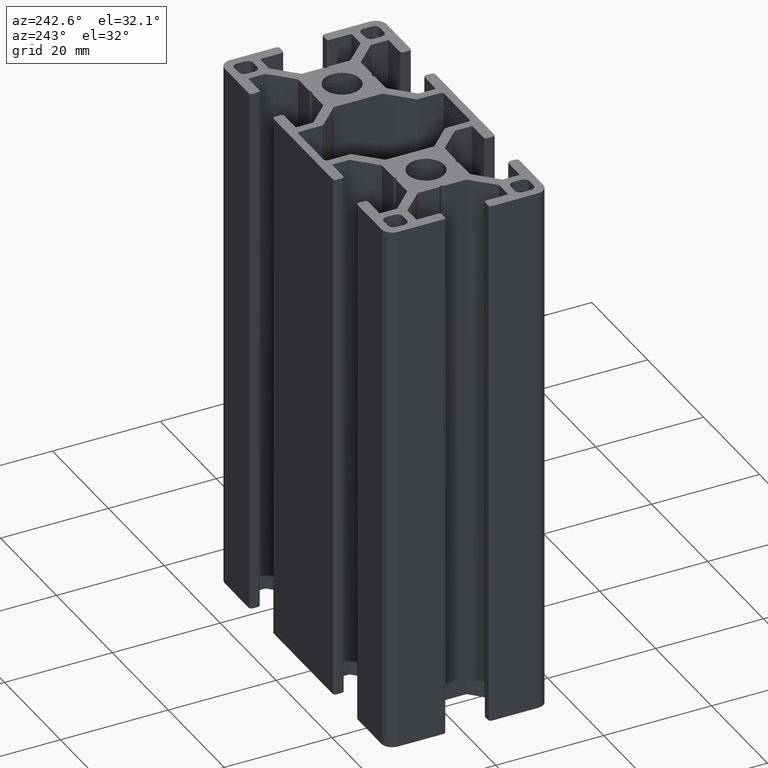
[diagram: clean part render]
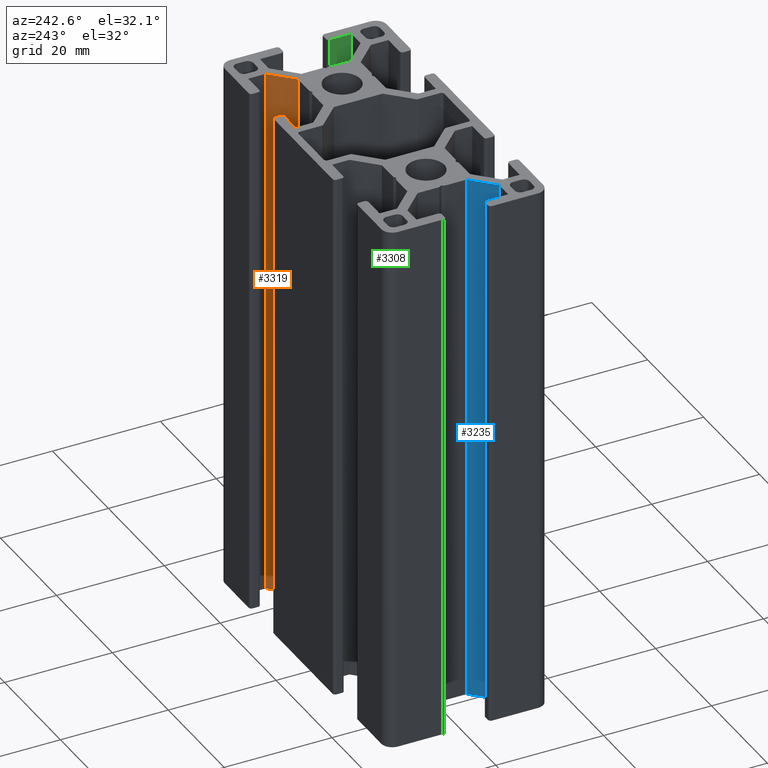
[diagram: same view with three faces highlighted in distinct colors, each labeled with its STEP entity id]
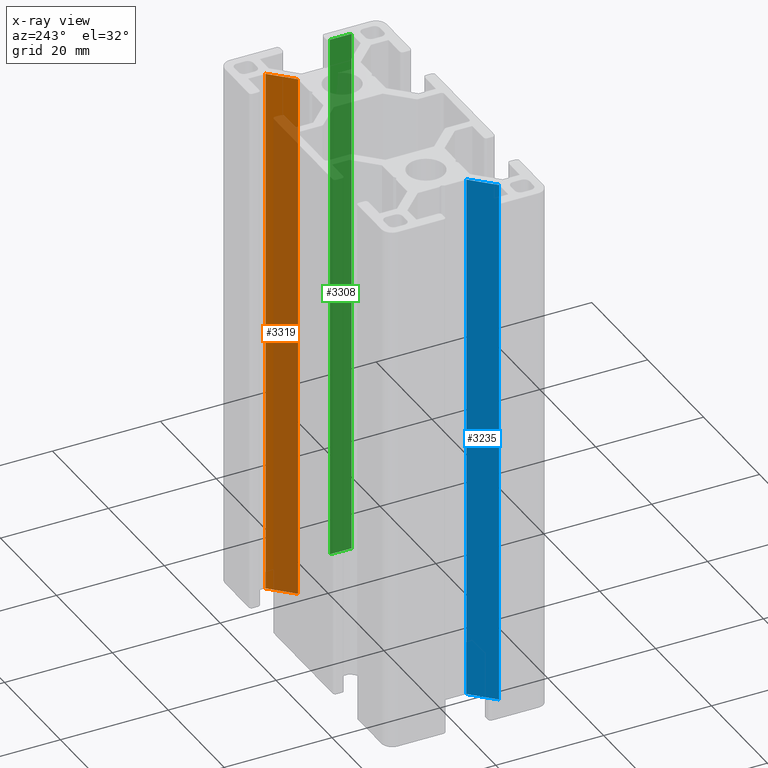
[diagram: x-ray of the same camera — body ghosted, the three highlighted faces saturated]
A machine part, auxiliary view with three faces highlighted in distinct colors.
The next image is the same camera in x-ray (body ghosted, the three faces saturated) — at least one of them is partly hidden behind the body in this view.
Their STEP definitions:

[orange] entity #3319 — the highlighted planar face has unit normal (0.7071, -0.7071, 0).
#297=FACE_OUTER_BOUND('',#463,.T.);
#463=EDGE_LOOP('',(#2539,#2540,#2541,#2542));
#801=LINE('',#5230,#1183);
#803=LINE('',#5234,#1185);
#804=LINE('',#5236,#1186);
#805=LINE('',#5237,#1187);
#1183=VECTOR('',#4239,100.);
#1185=VECTOR('',#4243,5.61837536245044);
#1186=VECTOR('',#4244,100.);
#1187=VECTOR('',#4245,5.61837536245044);
#1523=VERTEX_POINT('',#5227);
#1524=VERTEX_POINT('',#5229);
#1525=VERTEX_POINT('',#5233);
#1526=VERTEX_POINT('',#5235);
#1949=EDGE_CURVE('',#1524,#1523,#801,.T.);
#1951=EDGE_CURVE('',#1525,#1523,#803,.T.);
#1952=EDGE_CURVE('',#1526,#1525,#804,.T.);
#1953=EDGE_CURVE('',#1524,#1526,#805,.T.);
#2539=ORIENTED_EDGE('',*,*,#1951,.F.);
#2540=ORIENTED_EDGE('',*,*,#1952,.F.);
#2541=ORIENTED_EDGE('',*,*,#1953,.F.);
#2542=ORIENTED_EDGE('',*,*,#1949,.T.);
#3179=PLANE('',#3543);
#3319=ADVANCED_FACE('',(#297),#3179,.F.);
#3543=AXIS2_PLACEMENT_3D('',#5232,#4241,#4242);
#4239=DIRECTION('',(0.,0.,1.));
#4241=DIRECTION('center_axis',(0.707106781186544,-0.707106781186552,0.));
#4242=DIRECTION('ref_axis',(0.,0.,-1.));
#4243=DIRECTION('',(-0.707106781186552,-0.707106781186544,0.));
#4244=DIRECTION('',(0.,0.,1.));
#4245=DIRECTION('',(0.707106781186552,0.707106781186544,0.));
#5227=CARTESIAN_POINT('',(19.5272067949599,5.79999871239996,100.));
#5229=CARTESIAN_POINT('',(19.5272067949599,5.79999871239996,0.));
#5230=CARTESIAN_POINT('',(19.5272067949599,5.79999871239996,0.));
#5232=CARTESIAN_POINT('Origin',(23.499998113,9.77279003044007,0.));
#5233=CARTESIAN_POINT('',(23.499998113,9.77279003044007,100.));
#5234=CARTESIAN_POINT('',(15.1818010771399,1.45459299458006,100.));
#5235=CARTESIAN_POINT('',(23.499998113,9.77279003044007,0.));
#5236=CARTESIAN_POINT('',(23.499998113,9.77279003044007,0.));
#5237=CARTESIAN_POINT('',(15.1818010771399,1.45459299458006,0.));

[blue] entity #3235 — the highlighted planar face has unit normal (0.7071, -0.7071, 0).
#213=FACE_OUTER_BOUND('',#379,.T.);
#379=EDGE_LOOP('',(#2203,#2204,#2205,#2206));
#585=LINE('',#4713,#967);
#586=LINE('',#4715,#968);
#587=LINE('',#4717,#969);
#588=LINE('',#4718,#970);
#967=VECTOR('',#3777,5.61837536245042);
#968=VECTOR('',#3778,100.);
#969=VECTOR('',#3779,5.61837536245042);
#970=VECTOR('',#3780,100.);
#1345=VERTEX_POINT('',#4711);
#1346=VERTEX_POINT('',#4712);
#1347=VERTEX_POINT('',#4714);
#1348=VERTEX_POINT('',#4716);
#1693=EDGE_CURVE('',#1345,#1346,#585,.T.);
#1694=EDGE_CURVE('',#1347,#1345,#586,.T.);
#1695=EDGE_CURVE('',#1348,#1347,#587,.T.);
#1696=EDGE_CURVE('',#1348,#1346,#588,.T.);
#2203=ORIENTED_EDGE('',*,*,#1693,.F.);
#2204=ORIENTED_EDGE('',*,*,#1694,.F.);
#2205=ORIENTED_EDGE('',*,*,#1695,.F.);
#2206=ORIENTED_EDGE('',*,*,#1696,.T.);
#3115=PLANE('',#3419);
#3235=ADVANCED_FACE('',(#213),#3115,.F.);
#3419=AXIS2_PLACEMENT_3D('',#4710,#3775,#3776);
#3775=DIRECTION('center_axis',(0.707106781186548,-0.707106781186547,0.));
#3776=DIRECTION('ref_axis',(0.,0.,-1.));
#3777=DIRECTION('',(-0.707106781186547,-0.707106781186548,0.));
#3778=DIRECTION('',(0.,0.,1.));
#3779=DIRECTION('',(0.707106781186547,0.707106781186548,0.));
#3780=DIRECTION('',(0.,0.,1.));
#4710=CARTESIAN_POINT('Origin',(-20.7999987124,-4.52720679495989,0.));
#4711=CARTESIAN_POINT('',(-20.7999987124,-4.52720679495989,100.));
#4712=CARTESIAN_POINT('',(-24.7727900304401,-8.49999811300001,100.));
#4713=CARTESIAN_POINT('',(-14.46819733556,1.80459458188007,100.));
#4714=CARTESIAN_POINT('',(-20.7999987124,-4.52720679495989,0.));
#4715=CARTESIAN_POINT('',(-20.7999987124,-4.52720679495989,0.));
#4716=CARTESIAN_POINT('',(-24.7727900304401,-8.49999811300001,0.));
#4717=CARTESIAN_POINT('',(-14.46819733556,1.80459458188007,0.));
#4718=CARTESIAN_POINT('',(-24.7727900304401,-8.49999811300001,0.));

[green] entity #3308 — the highlighted planar face has unit normal (1, -0, 0).
#286=FACE_OUTER_BOUND('',#452,.T.);
#452=EDGE_LOOP('',(#2495,#2496,#2497,#2498));
#769=LINE('',#5165,#1151);
#770=LINE('',#5168,#1152);
#771=LINE('',#5170,#1153);
#772=LINE('',#5171,#1154);
#1151=VECTOR('',#4185,100.);
#1152=VECTOR('',#4188,3.99999910997443);
#1153=VECTOR('',#4189,3.99999910997443);
#1154=VECTOR('',#4190,100.);
#1501=VERTEX_POINT('',#5161);
#1502=VERTEX_POINT('',#5163);
#1503=VERTEX_POINT('',#5167);
#1504=VERTEX_POINT('',#5169);
#1917=EDGE_CURVE('',#1502,#1501,#769,.T.);
#1918=EDGE_CURVE('',#1501,#1503,#770,.T.);
#1919=EDGE_CURVE('',#1504,#1502,#771,.T.);
#1920=EDGE_CURVE('',#1504,#1503,#772,.T.);
#2495=ORIENTED_EDGE('',*,*,#1918,.F.);
#2496=ORIENTED_EDGE('',*,*,#1917,.F.);
#2497=ORIENTED_EDGE('',*,*,#1919,.F.);
#2498=ORIENTED_EDGE('',*,*,#1920,.T.);
#3168=PLANE('',#3532);
#3308=ADVANCED_FACE('',(#286),#3168,.F.);
#3532=AXIS2_PLACEMENT_3D('',#5166,#4186,#4187);
#4185=DIRECTION('',(0.,0.,1.));
#4186=DIRECTION('center_axis',(1.,-2.22044654331387E-15,0.));
#4187=DIRECTION('ref_axis',(0.,0.,-1.));
#4188=DIRECTION('',(-2.22044654331387E-15,-1.,0.));
#4189=DIRECTION('',(2.22044654331387E-15,1.,0.));
#4190=DIRECTION('',(0.,0.,1.));
#5161=CARTESIAN_POINT('',(27.999997114,-4.49999900302559,100.));
#5163=CARTESIAN_POINT('',(27.999997114,-4.49999900302559,0.));
#5165=CARTESIAN_POINT('',(27.999997114,-4.49999900302559,0.));
#5166=CARTESIAN_POINT('Origin',(27.999997114,-4.49999900302559,0.));
#5167=CARTESIAN_POINT('',(27.999997114,-8.49999811300001,100.));
#5168=CARTESIAN_POINT('',(27.999997114,-2.24999783651285,100.));
#5169=CARTESIAN_POINT('',(27.999997114,-8.49999811300001,0.));
#5170=CARTESIAN_POINT('',(27.999997114,-2.24999783651285,0.));
#5171=CARTESIAN_POINT('',(27.999997114,-8.49999811300001,0.));